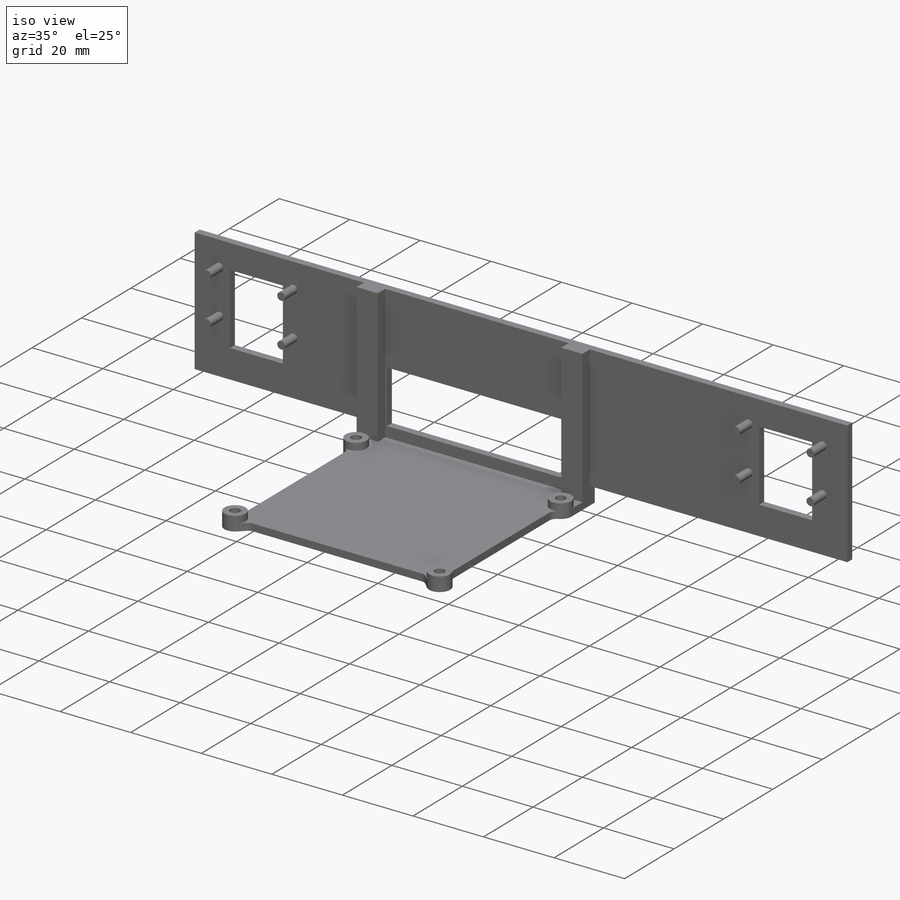
[diagram: iso view]
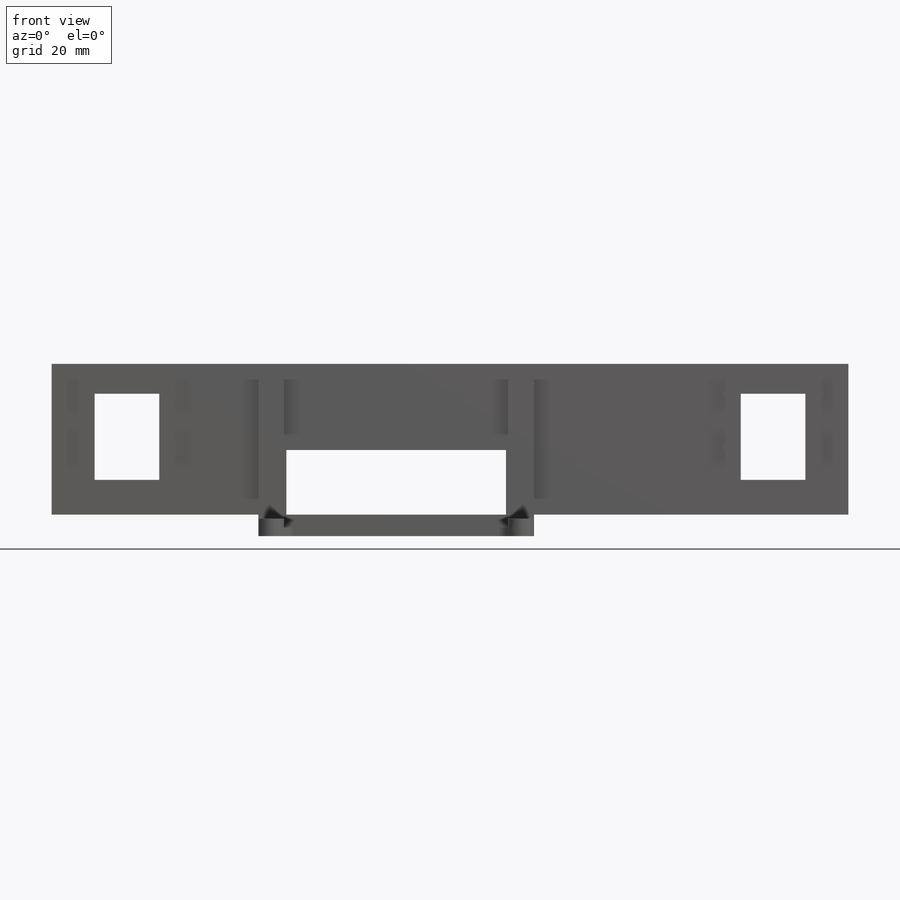
[diagram: front view]
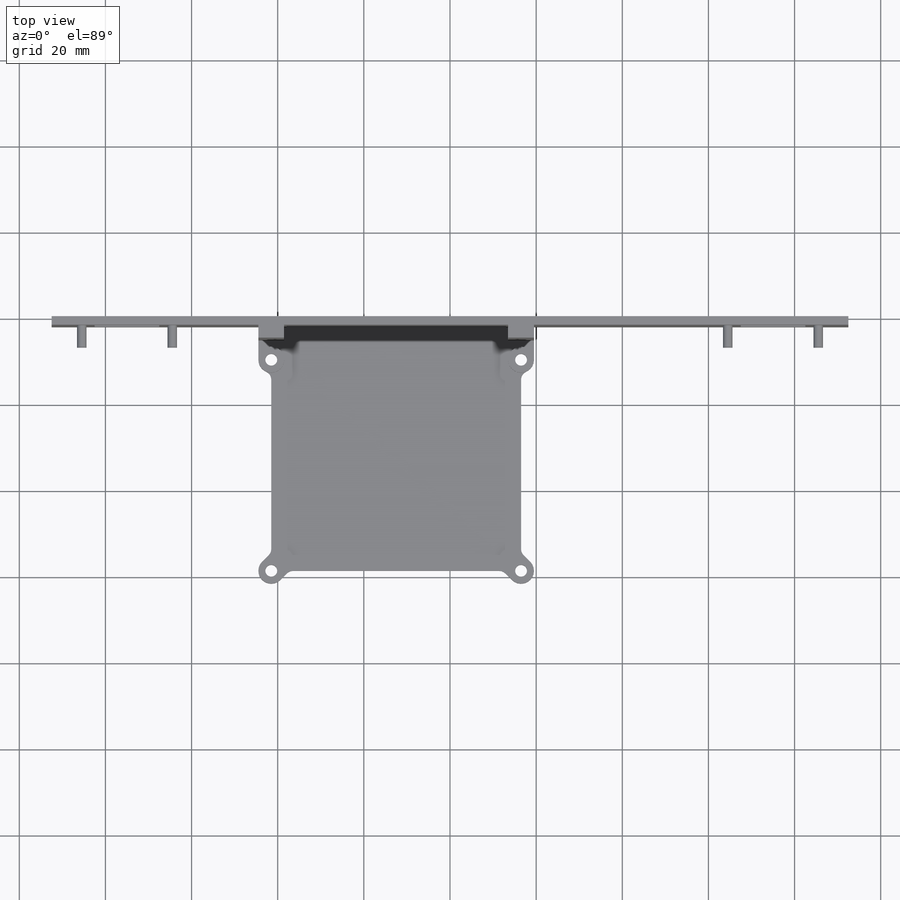
[diagram: top view]
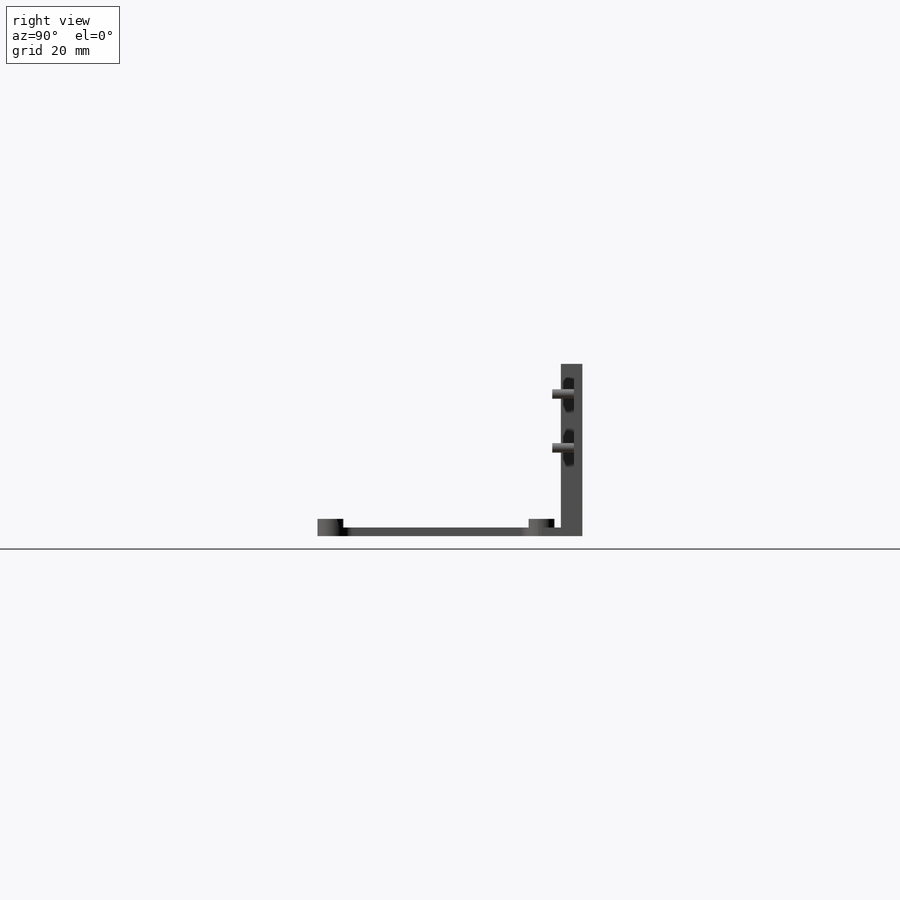
[diagram: right view]
SOLIDWORKS PART (.sldprt)
format: sldprt  version: not decoded by parser v0  size: 459,264 bytes
history: native  units: mm
features: sketch x11, extrude x5, cut_extrude x5, material x1, mirror x1, fillet x1 + 1 further entry (+13 scaffold rows collapsed)
feature tree (38):
  scaffold x13  (default folders/planes/origin — collapsed)
  material  "Material <not specified>"
  sketch  "Sketch1"  dims[c1.D1=25.0mm c1.D2=24.0mm c2.D1=25.0mm c2.D2=25.0mm c2.D3=5.0mm c2.D4=5.0mm c2.D5=100.0mm c2.D6=~76.194438mm c3.D6=135.0deg c4.D6=50.0mm c4.D7=25.0mm c4.D8=40.0mm c4.D9=65.0mm c4.D10=42.5mm c5.D8=12.5mm c5.D10=~17.37751mm c6.D8=2.0mm c6.D10=5.0mm c6.D11=~16.705174mm c6.D5=2.0mm c7.D8=5.0mm c7.D9=5.0mm c7.D10=75.0mm]
  extrude  "Boss-Extrude1"  Depth=2mm
  sketch  "Sketch8"  dims[D1=2.2mm D2=2.2mm D3=2.2mm D4=2.2mm D5=2.0mm D6=2.0mm D7=2.0mm D8=2.0mm D9=14.5mm D10=14.5mm]
  extrude  "Boss-Extrude4"  Depth=5mm
  mirror  "Mirror2"
  sketch  "Sketch2"  dims[D1=2.0mm]
  extrude  "Boss-Extrude2"  Depth=65mm
  cut_extrude  "Cut-Extrude2"  [1 undecoded]
  sketch  "Sketch9"
  cut_extrude  "Cut-Extrude3"  [1 undecoded]
  sketch  "Sketch10"  dims[c1.D1=2.75mm c1.D2=2.75mm c1.D3=2.75mm c1.D4=2.75mm c1.D5=7.5mm c1.D6=8.5mm c1.D7=49.0mm c1.D8=58.0mm c2.D6=41.5mm]
  sketch  "Sketch11"  dims[c1.D3=0.5mm c1.D2=0.5mm c1.D1=5.0mm c2.D2=5.0mm]
  extrude  "Boss-Extrude5"  Depth=2mm
  sketch  "Sketch12"
  "Sketch-Pattern1"
  sketch  "Sketch15"  dims[c1.D3=2.0mm c1.D4=2.0mm c1.D1=~2.074413mm c2.D1=135.0deg c2.D2=~2.481376mm c3.D2=135.0deg]
  cut_extrude  "Cut-Extrude4"  [1 undecoded]
  sketch  "Sketch16"
  cut_extrude  "Cut-Extrude5"  [1 undecoded]
  sketch  "Sketch17"  dims[D1=6.0mm]
  extrude  "Boss-Extrude6"  Depth=3mm
  cut_extrude  "Cut-Extrude6"  [1 undecoded]
  sketch  "Sketch18"  dims[c1.D1=51.0mm c1.D2=27.0mm c1.D3=15.0mm c1.D4=2.0mm c2.D3=15.0mm]
  fillet  "Fillet1"  Radius=1mm
decode coverage: 14 of 23 modeling features carry decoded parameters; 1 rows unclassified (native names shown)
note: ~ marks probable driven/reference dimensions
note: 5 parameter values undecoded
summary: no parameter record found for 5 features
note: suppression state not decoded; provenance and decode notes live in map.json
